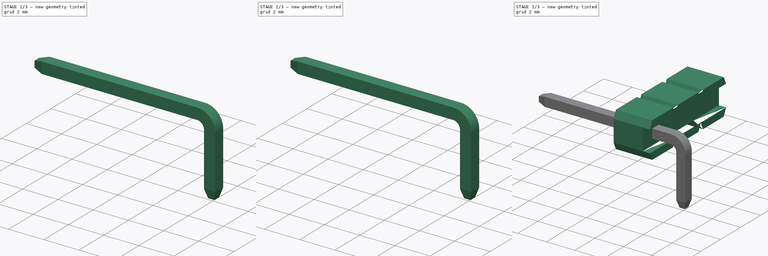
[diagram: build sequence overview — one tinted view per stage of 3, left to right]
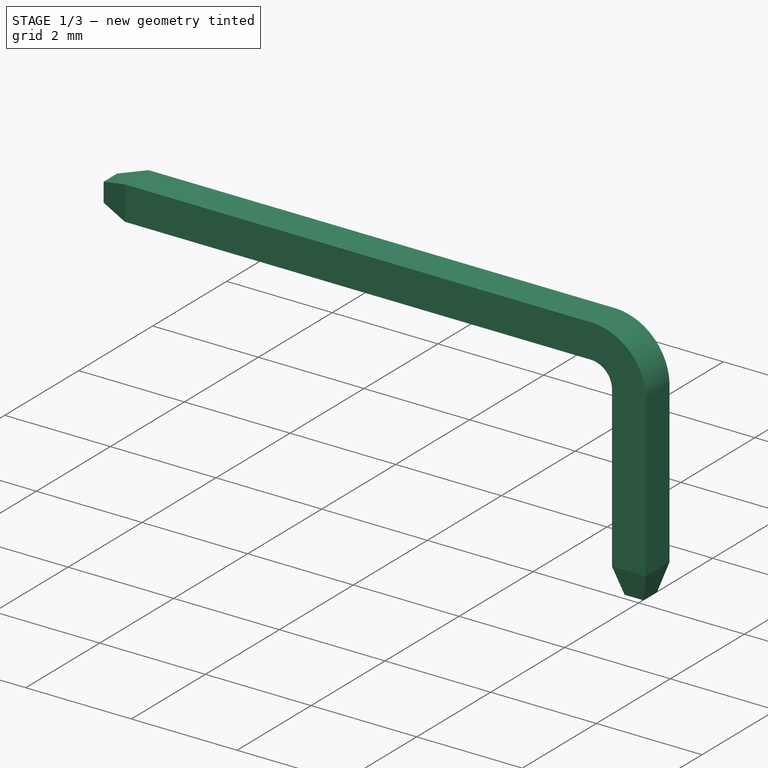
[diagram: stage 1 of 3 — iso view after this stage's code; geometry added in this stage tinted green]
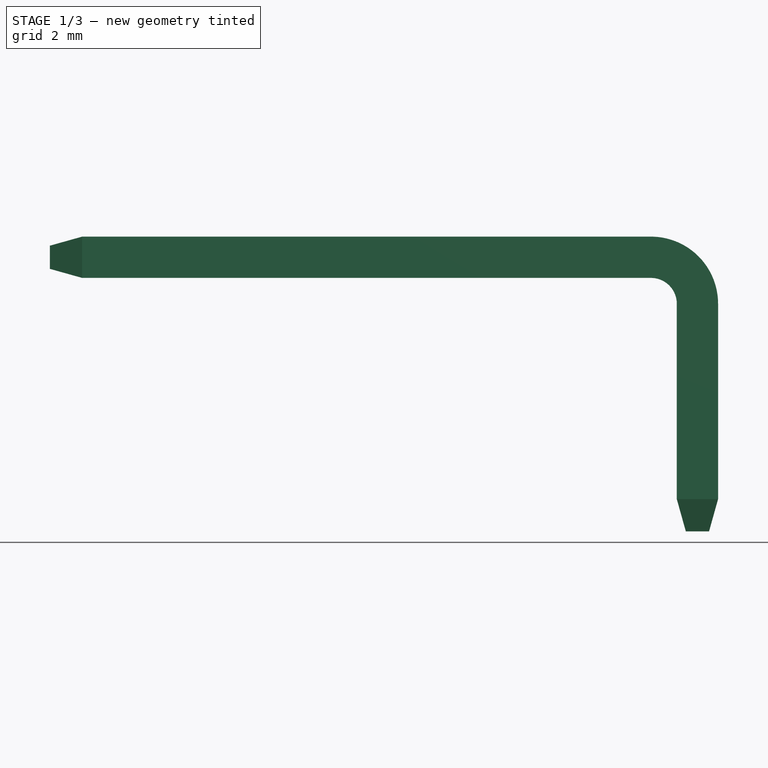
[diagram: stage 1 of 3 — front view after this stage's code; geometry added in this stage tinted green]
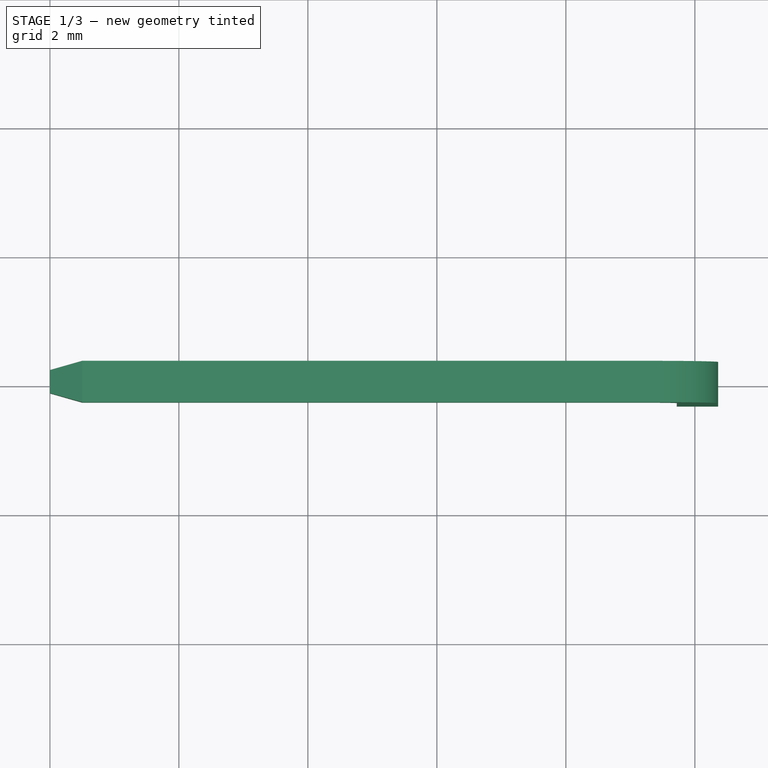
[diagram: stage 1 of 3 — top view after this stage's code; geometry added in this stage tinted green]
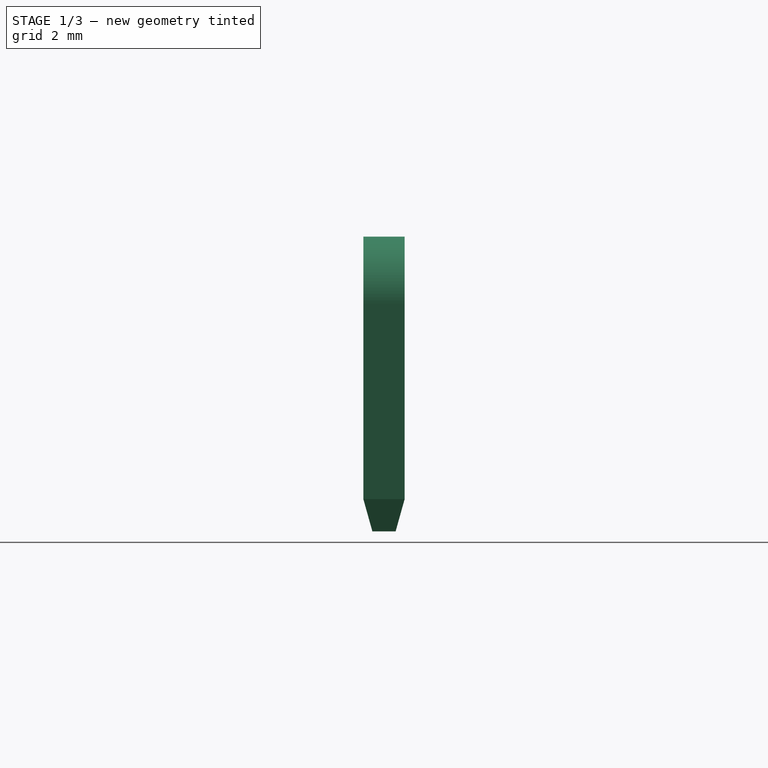
[diagram: stage 1 of 3 — right view after this stage's code; geometry added in this stage tinted green]
FCSTD DOCUMENT  (FreeCAD 0.19R19285 (Git))
Label: 1x3-male-pin-header-right-angle-type-II
License: Creative Commons Attribution-ShareAlike
LicenseURL: http://creativecommons.org/licenses/by-sa/4.0/
objects: Sketcher::SketchObject×9, PartDesign::Body×4, PartDesign::AdditiveLoft×2, PartDesign::FeatureBase×2, PartDesign::Pad×1, PartDesign::LinearPattern×1, PartDesign::Pocket×1, PartDesign::AdditivePipe×1, App::Part×1
note: 26 computed .brp shape members not serialized (recipe doc carries the construction recipe); baked Part::Feature solids carry a one-line shape summary decoded from their .brp

FEATURE [PartDesign::Body] Body  label="1x3-Insulator"
  Group = -> [Sketch,Sketch003,Pad,LinearPattern,Sketch004,Pocket]
  Origin = -> Origin
  Tip = -> Pocket
FEATURE [Sketcher::SketchObject] Sketch007  label="path-sk"
  MapMode = 5
  Placement = pos=(0,0,0) rot=(1,0,0;1.5708rad)
  Support = -> [XZ_Plane001]
  sketch-geometry (6):
    g0: LineSegment StartX=-5.5 StartY=0 StartZ=0 EndX=0 EndY=0 EndZ=0
    g1: LineSegment StartX=0 StartY=0 StartZ=0 EndX=3.32 EndY=0 EndZ=0
    g2: LineSegment StartX=4.04 StartY=-0.72 StartZ=0 EndX=4.04 EndY=-3.75 EndZ=0
    g3: LineSegment [constr] StartX=3.32 StartY=0 StartZ=0 EndX=3.32 EndY=-0.72 EndZ=0
    g4: LineSegment [constr] StartX=4.04 StartY=-0.72 StartZ=0 EndX=3.32 EndY=-0.72 EndZ=0
    g5: ArcOfCircle CenterX=3.32 CenterY=-0.72 CenterZ=0 NormalX=0 NormalY=0 NormalZ=1 AngleXU=0 Radius=0.72 StartAngle=0 EndAngle=1.5708
  constraints (18):
    c: PointOnObject(g0,g-1)
    c: Coincident(g0,g-1)
    c: Coincident(g1,g0)
    c: Horizontal(g1)
    c: Vertical(g2)
    c: Coincident(g3,g1)
    c: Coincident(g4,g2)
    c: Coincident(g4,g3)
    c: Vertical(g3)
    c: Horizontal(g4)
    c: Coincident(g5,g3)
    c: Coincident(g5,g1)
    c: Coincident(g2,g5)
    c: DistanceX(g0,g0) = 5.5
    c: DistanceX(g1,g1) = 3.32
    c: Equal(g3,g4)
    c: DistanceY(g3,g3) = 0.72
    c: DistanceY(g2,g2) = 3.03
FEATURE [Sketcher::SketchObject] Sketch008  label="profile-sk"
  MapMode = 5
  Placement = pos=(0,0,0) rot=(0.57735,0.57735,0.57735;2.0944rad)
  Support = -> [YZ_Plane001]
  sketch-geometry (4):
    g0: LineSegment StartX=-0.32 StartY=0.32 StartZ=0 EndX=0.32 EndY=0.32 EndZ=0
    g1: LineSegment StartX=0.32 StartY=0.32 StartZ=0 EndX=0.32 EndY=-0.32 EndZ=0
    g2: LineSegment StartX=0.32 StartY=-0.32 StartZ=0 EndX=-0.32 EndY=-0.32 EndZ=0
    g3: LineSegment StartX=-0.32 StartY=-0.32 StartZ=0 EndX=-0.32 EndY=0.32 EndZ=0
  constraints (11):
    c: Coincident(g0,g1)
    c: Coincident(g1,g2)
    c: Coincident(g2,g3)
    c: Coincident(g3,g0)
    c: Horizontal(g0)
    c: Horizontal(g2)
    c: Vertical(g1)
    c: Vertical(g3)
    c: Symmetric(g0,g1,g-1)
    c: Equal(g0,g3)
    c: DistanceX(g0,g0) = 0.64
FEATURE [PartDesign::AdditivePipe] AdditivePipe  label="pin-base"
  AuxilleryCurvelinear = true
  AuxillerySpineTangent = false
  Binormal = (0,0,0)
  Mode = 0
  Placement = pos=(0,0,0) rot=(0.57735,0.57735,0.57735;2.0944rad)
  Profile = -> Sketch008
  Refine = true
  Spine = -> Sketch007
  SpineTangent = false
  Transformation = 0
  Transition = 0
FEATURE [Sketcher::SketchObject] Sketch009  label="small-base-sk"
  AttachmentOffset = pos=(0,0,-6) rot=(0,0,1;0rad)
  MapMode = 5
  Placement = pos=(-6,1.3e-15,-1.3e-15) rot=(0.57735,0.57735,0.57735;2.0944rad)
  Support = -> [YZ_Plane]
  sketch-geometry (4):
    g0: LineSegment StartX=-0.18 StartY=0.18 StartZ=0 EndX=0.18 EndY=0.18 EndZ=0
    g1: LineSegment StartX=0.18 StartY=0.18 StartZ=0 EndX=0.18 EndY=-0.18 EndZ=0
    g2: LineSegment StartX=0.18 StartY=-0.18 StartZ=0 EndX=-0.18 EndY=-0.18 EndZ=0
    g3: LineSegment StartX=-0.18 StartY=-0.18 StartZ=0 EndX=-0.18 EndY=0.18 EndZ=0
  constraints (11):
    c: Coincident(g0,g1)
    c: Coincident(g1,g2)
    c: Coincident(g2,g3)
    c: Coincident(g3,g0)
    c: Horizontal(g0)
    c: Horizontal(g2)
    c: Vertical(g1)
    c: Vertical(g3)
    c: Symmetric(g0,g1,g-1)
    c: DistanceX(g0,g0) = 0.36
    c: Equal(g0,g1)
FEATURE [Sketcher::SketchObject] Sketch010  label="big-base-sk"
  AttachmentOffset = pos=(0,0,-5.5) rot=(0,0,1;0rad)
  ExternalGeometry = -> [AdditivePipe,Sketch008]
  MapMode = 5
  Placement = pos=(-5.5,1.2e-15,-1.2e-15) rot=(0.57735,0.57735,0.57735;2.0944rad)
  Support = -> [YZ_Plane]
  sketch-geometry (4):
    g0: LineSegment StartX=-0.32 StartY=0.32 StartZ=0 EndX=0.32 EndY=0.32 EndZ=0
    g1: LineSegment StartX=0.32 StartY=0.32 StartZ=0 EndX=0.32 EndY=-0.32 EndZ=0
    g2: LineSegment StartX=0.32 StartY=-0.32 StartZ=0 EndX=-0.32 EndY=-0.32 EndZ=0
    g3: LineSegment StartX=-0.32 StartY=-0.32 StartZ=0 EndX=-0.32 EndY=0.32 EndZ=0
  constraints (10):
    c: Coincident(g0,g1)
    c: Coincident(g1,g2)
    c: Coincident(g2,g3)
    c: Coincident(g3,g0)
    c: Horizontal(g0)
    c: Horizontal(g2)
    c: Vertical(g1)
    c: Vertical(g3)
    c: Coincident(g-3,g0)
    c: Coincident(g1,g-4)
FEATURE [PartDesign::AdditiveLoft] AdditiveLoft  label="pin-end1"
  BaseFeature = -> AdditivePipe
  Closed = false
  Placement = pos=(0,0,0) rot=(0.57735,0.57735,0.57735;2.0944rad)
  Profile = -> Sketch010
  Refine = true
  Ruled = false
  Sections = -> [Sketch009]
FEATURE [Sketcher::SketchObject] Sketch011  label="big-base2-sk"
  AttachmentOffset = pos=(0,0,-3.75) rot=(0,0,1;0rad)
  ExternalGeometry = -> [AdditiveLoft]
  MapMode = 5
  Placement = pos=(0,0,-3.75) rot=(0,0,1;0rad)
  Support = -> [XY_Plane001]
  sketch-geometry (4):
    g0: LineSegment StartX=3.72 StartY=0.32 StartZ=0 EndX=4.36 EndY=0.32 EndZ=0
    g1: LineSegment StartX=4.36 StartY=0.32 StartZ=0 EndX=4.36 EndY=-0.32 EndZ=0
    g2: LineSegment StartX=4.36 StartY=-0.32 StartZ=0 EndX=3.72 EndY=-0.32 EndZ=0
    g3: LineSegment StartX=3.72 StartY=-0.32 StartZ=0 EndX=3.72 EndY=0.32 EndZ=0
  constraints (10):
    c: Coincident(g0,g1)
    c: Coincident(g1,g2)
    c: Coincident(g2,g3)
    c: Coincident(g3,g0)
    c: Horizontal(g0)
    c: Horizontal(g2)
    c: Vertical(g1)
    c: Vertical(g3)
    c: Coincident(g0,g-3)
    c: Coincident(g1,g-4)
FEATURE [Sketcher::SketchObject] Sketch012  label="small-base2-sk"
  AttachmentOffset = pos=(0,0,-4.25) rot=(0,0,1;0rad)
  ExternalGeometry = -> [Sketch011]
  MapMode = 5
  Placement = pos=(0,0,-4.25) rot=(0,0,1;0rad)
  Support = -> [XY_Plane001]
  sketch-geometry (6):
    g0: LineSegment StartX=3.86 StartY=0.18 StartZ=0 EndX=4.22 EndY=0.18 EndZ=0
    g1: LineSegment StartX=4.22 StartY=0.18 StartZ=0 EndX=4.22 EndY=-0.18 EndZ=0
    g2: LineSegment StartX=4.22 StartY=-0.18 StartZ=0 EndX=3.86 EndY=-0.18 EndZ=0
    g3: LineSegment StartX=3.86 StartY=-0.18 StartZ=0 EndX=3.86 EndY=0.18 EndZ=0
    g4: LineSegment [constr] StartX=4.04 StartY=0.32 StartZ=0 EndX=4.04 EndY=-0.32 EndZ=0
    g5: GeomPoint X=4.04 Y=0 Z=0
  constraints (16):
    c: Coincident(g0,g1)
    c: Coincident(g1,g2)
    c: Coincident(g2,g3)
    c: Coincident(g3,g0)
    c: Horizontal(g0)
    c: Horizontal(g2)
    c: Vertical(g1)
    c: Vertical(g3)
    c: PointOnObject(g4,g-3)
    c: PointOnObject(g4,g-5)
    c: Symmetric(g-4,g-3,g4)
    c: PointOnObject(g5,g4)
    c: PointOnObject(g5,g-1)
    c: Symmetric(g0,g1,g5)
    c: Equal(g0,g1)
    c: DistanceX(g0,g0) = 0.36
FEATURE [PartDesign::AdditiveLoft] AdditiveLoft001
  BaseFeature = -> AdditiveLoft
  Closed = false
  Placement = pos=(0,0,0) rot=(0.57735,0.57735,0.57735;2.0944rad)
  Profile = -> Sketch011
  Refine = true
  Ruled = false
  Sections = -> [Sketch012]
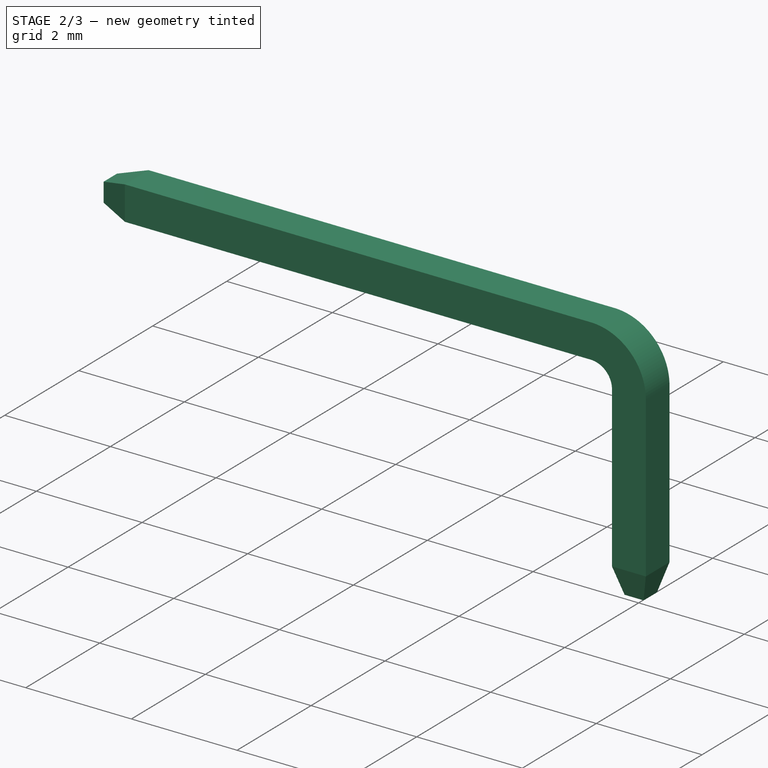
[diagram: stage 2 of 3 — iso view after this stage's code; geometry added in this stage tinted green]
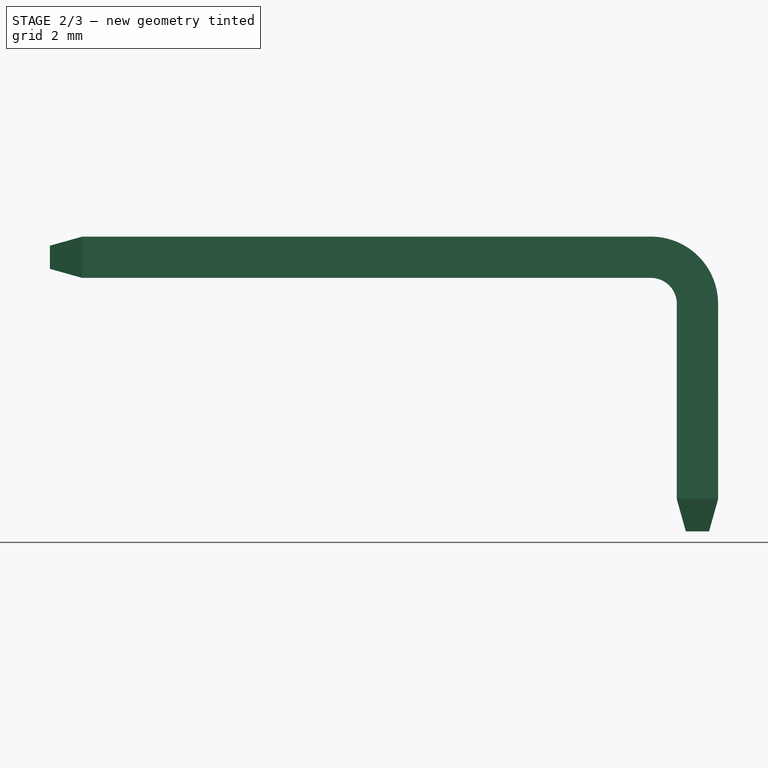
[diagram: stage 2 of 3 — front view after this stage's code; geometry added in this stage tinted green]
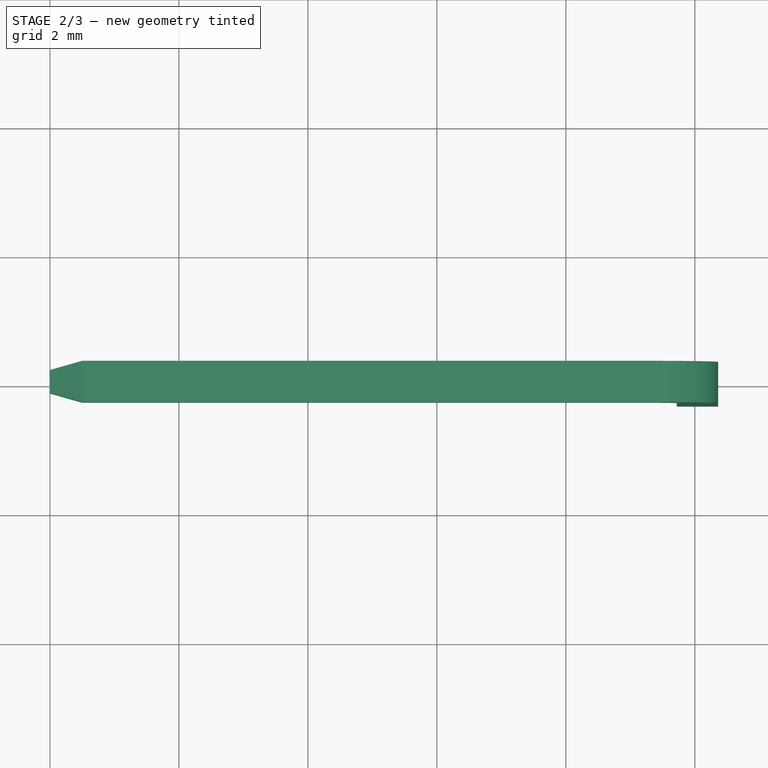
[diagram: stage 2 of 3 — top view after this stage's code; geometry added in this stage tinted green]
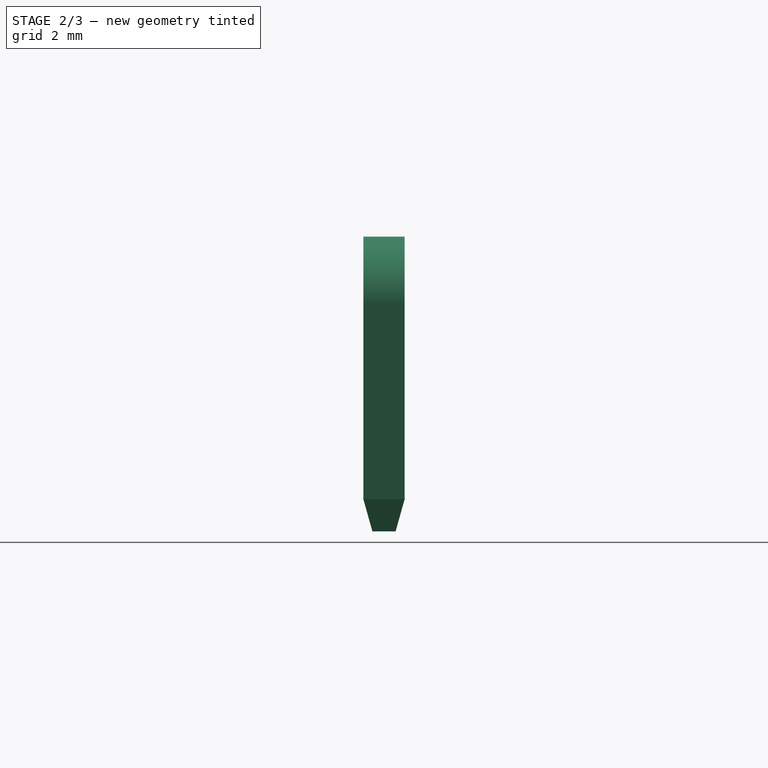
[diagram: stage 2 of 3 — right view after this stage's code; geometry added in this stage tinted green]
FEATURE [PartDesign::Body] Body001  label="pin"
  Group = -> [Sketch007,Sketch008,AdditivePipe,Sketch009,Sketch010,AdditiveLoft,Sketch011,Sketch012,AdditiveLoft001]
  Origin = -> Origin001
  Tip = -> AdditiveLoft001
FEATURE [PartDesign::FeatureBase] Clone
  BaseFeature = -> Body001
FEATURE [PartDesign::Body] Body002  label="pin2"
  Group = -> [Clone]
  Origin = -> Origin002
  Placement = pos=(0,2.54,0) rot=(0,0,1;0rad)
  Tip = -> Clone
FEATURE [PartDesign::FeatureBase] Clone001
  BaseFeature = -> Body001
FEATURE [PartDesign::Body] Body003  label="pin3"
  Group = -> [Clone001]
  Origin = -> Origin003
  Placement = pos=(0,5.08,0) rot=(0,0,1;0rad)
  Tip = -> Clone001
  expr: .Placement.Base.y = 2.54 * 2
FEATURE [App::Part] Part  label="1x3-mape-pin-header-right-angle"
  Group = -> [Body,Body001,Body002,Body003]
  Origin = -> Origin004
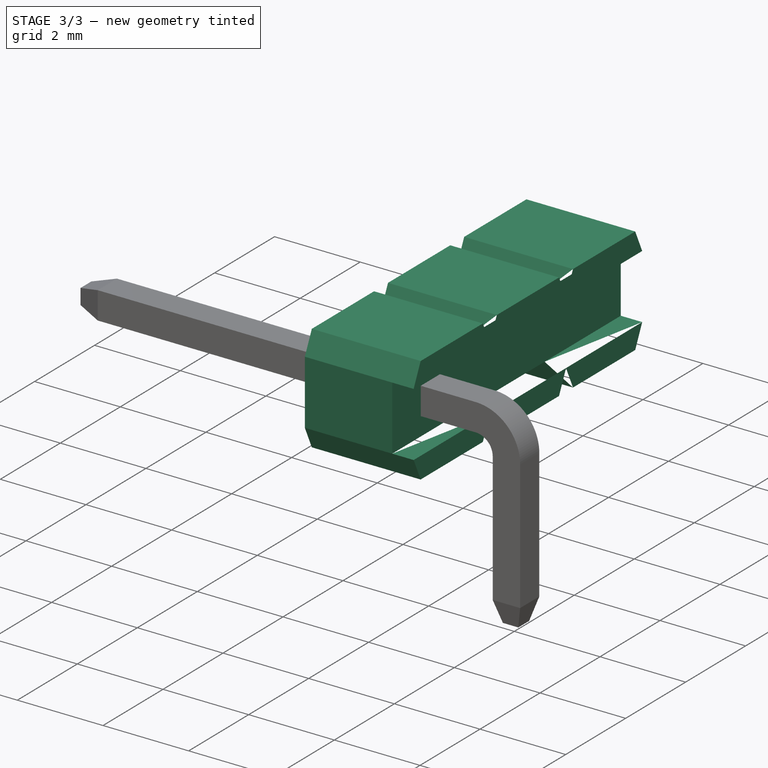
[diagram: stage 3 of 3 — iso view after this stage's code; geometry added in this stage tinted green]
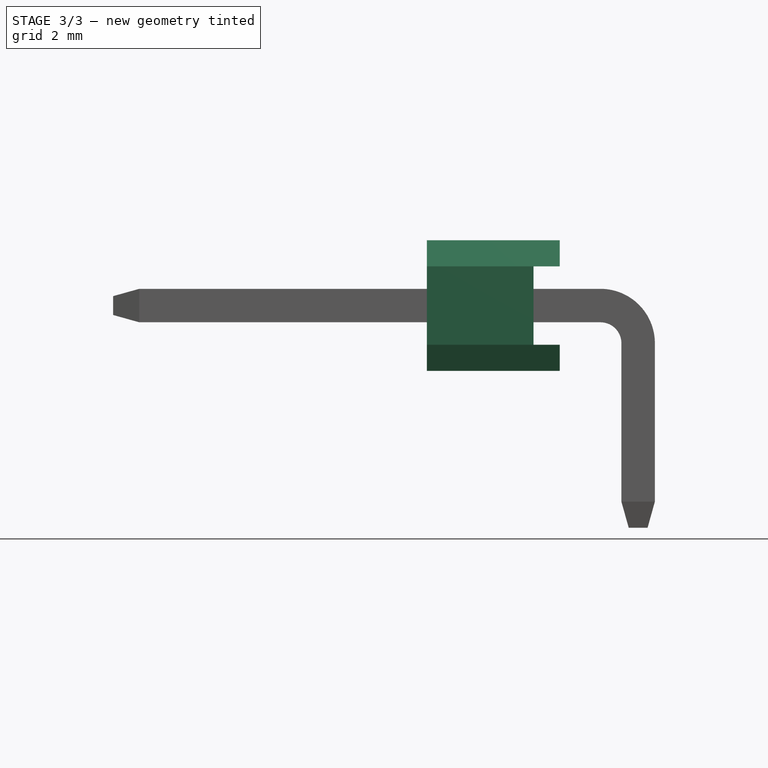
[diagram: stage 3 of 3 — front view after this stage's code; geometry added in this stage tinted green]
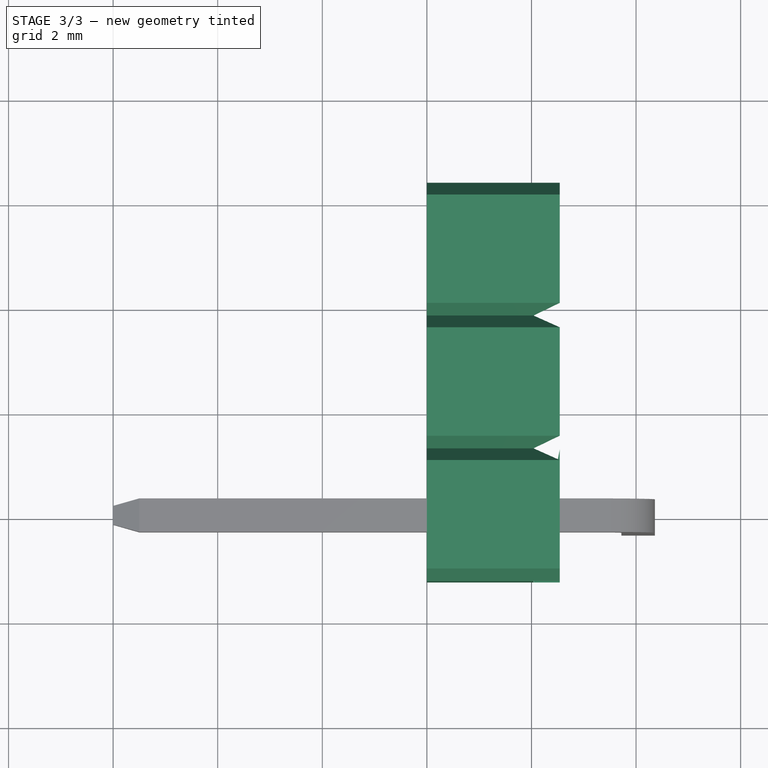
[diagram: stage 3 of 3 — top view after this stage's code; geometry added in this stage tinted green]
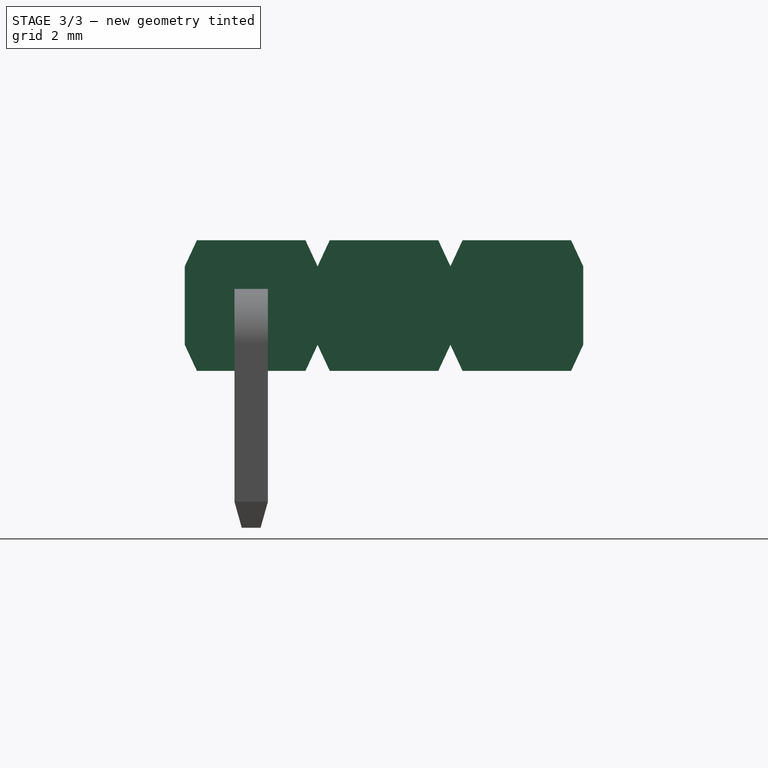
[diagram: stage 3 of 3 — right view after this stage's code; geometry added in this stage tinted green]
FEATURE [Sketcher::SketchObject] Sketch  label="Insulator-1-sk"
  MapMode = 5
  Placement = pos=(0,0,0) rot=(0.57735,0.57735,0.57735;2.0944rad)
  Support = -> [YZ_Plane]
  sketch-geometry (8):
    g0: LineSegment StartX=-1.27 StartY=0.75 StartZ=0 EndX=-1.27 EndY=-0.75 EndZ=0
    g1: LineSegment StartX=-1.27 StartY=0.75 StartZ=0 EndX=-1.0375 EndY=1.25 EndZ=0
    g2: LineSegment StartX=-1.27 StartY=-0.75 StartZ=0 EndX=-1.0375 EndY=-1.25 EndZ=0
    g3: LineSegment StartX=-1.0375 StartY=1.25 StartZ=0 EndX=1.0375 EndY=1.25 EndZ=0
    g4: LineSegment StartX=1.0375 StartY=1.25 StartZ=0 EndX=1.27 EndY=0.75 EndZ=0
    g5: LineSegment StartX=1.27 StartY=0.75 StartZ=0 EndX=1.27 EndY=-0.75 EndZ=0
    g6: LineSegment StartX=1.27 StartY=-0.75 StartZ=0 EndX=1.0375 EndY=-1.25 EndZ=0
    g7: LineSegment StartX=1.0375 StartY=-1.25 StartZ=0 EndX=-1.0375 EndY=-1.25 EndZ=0
  constraints (18):
    c: Symmetric(g0,g0,g-1)
    c: Coincident(g1,g0)
    c: Symmetric(g2,g1,g-1)
    c: Coincident(g0,g2)
    c: DistanceY(g2,g1) = 2.5
    c: DistanceY(g2,g0) = 0.5
    c: Coincident(g3,g1)
    c: Symmetric(g1,g3,g-2)
    c: DistanceX(g3,g3) = 2.075
    c: Coincident(g4,g3)
    c: DistanceX(g0,g4) = 2.54
    c: Symmetric(g4,g0,g-2)
    c: Coincident(g4,g5)
    c: Coincident(g5,g6)
    c: Coincident(g6,g7)
    c: Coincident(g7,g2)
    c: Symmetric(g0,g5,g-2)
    c: Symmetric(g2,g6,g-2)
FEATURE [Sketcher::SketchObject] Sketch003  label="Insulator-sketch-1"
  MapMode = 5
  Placement = pos=(-4.04,-9.56e-13,-0.000281898) rot=(0.57735,0.57735,0.57735;2.0944rad)
  sketch-geometry (11):
    g0: LineSegment StartX=-1.0375 StartY=0 StartZ=0 EndX=1.0375 EndY=0 EndZ=0
    g1: LineSegment [constr] StartX=-1.0375 StartY=0 StartZ=0 EndX=-1.0375 EndY=2.5 EndZ=0
    g2: LineSegment [constr] StartX=-1.0375 StartY=1.25 StartZ=0 EndX=0 EndY=1.25 EndZ=0
    g3: LineSegment [constr] StartX=-1.27 StartY=0.5 StartZ=0 EndX=1.27 EndY=0.5 EndZ=0
    g4: LineSegment StartX=-1.0375 StartY=0 StartZ=0 EndX=-1.27 EndY=0.5 EndZ=0
    g5: LineSegment StartX=-1.27 StartY=0.5 StartZ=0 EndX=-1.27 EndY=2 EndZ=0
    g6: LineSegment StartX=-1.27 StartY=2 StartZ=0 EndX=-1.0375 EndY=2.5 EndZ=0
    g7: LineSegment StartX=-1.0375 StartY=2.5 StartZ=0 EndX=1.0375 EndY=2.5 EndZ=0
    g8: LineSegment StartX=1.0375 StartY=2.5 StartZ=0 EndX=1.27 EndY=2 EndZ=0
    g9: LineSegment StartX=1.27 StartY=2 StartZ=0 EndX=1.27 EndY=0.5 EndZ=0
    g10: LineSegment StartX=1.27 StartY=0.5 StartZ=0 EndX=1.0375 EndY=0 EndZ=0
  constraints (28):
    c: PointOnObject(g0,g-1)
    c: Symmetric(g0,g0,g-2)
    c: DistanceX(g0,g0) = 2.075
    c: Coincident(g1,g0)
    c: Vertical(g1)
    c: DistanceY(g1,g1) = 2.5
    c: PointOnObject(g2,g1)
    c: PointOnObject(g2,g-2)
    c: Symmetric(g1,g0,g2)
    c: Horizontal(g3)
    c: Symmetric(g3,g3,g-2)
    c: DistanceX(g3,g3) = 2.54
    c: Coincident(g0,g4)
    c: Coincident(g4,g3)
    c: Coincident(g4,g5)
    c: Coincident(g5,g6)
    c: Coincident(g6,g1)
    c: Symmetric(g3,g5,g2)
    c: DistanceY(g0,g3) = 0.5
    c: Coincident(g7,g1)
    c: Horizontal(g7)
    c: Coincident(g7,g8)
    c: Coincident(g8,g9)
    c: Coincident(g9,g3)
    c: Coincident(g9,g10)
    c: Coincident(g10,g0)
    c: Symmetric(g1,g7,g-2)
    c: Symmetric(g8,g5,g-2)
FEATURE [PartDesign::Pad] Pad  label="Insulator-1"
  Length = 2.54
  Length2 = 100
  Placement = pos=(0,0,0) rot=(0.57735,0.57735,0.57735;2.0944rad)
  Profile = -> Sketch
  Refine = true
  Type = 0
FEATURE [Sketcher::SketchObject] Sketch004  label="insultator-cutout-sk"
  ExternalGeometry = -> [Sketch]
  MapMode = 5
  Placement = pos=(0,0,0) rot=(1,0,0;1.5708rad)
  Support = -> [XZ_Plane]
  sketch-geometry (5):
    g0: LineSegment StartX=2.04 StartY=0.75 StartZ=0 EndX=2.54 EndY=0.75 EndZ=0
    g1: LineSegment StartX=2.54 StartY=0.75 StartZ=0 EndX=2.54 EndY=-0.75 EndZ=0
    g2: LineSegment StartX=2.54 StartY=-0.75 StartZ=0 EndX=2.04 EndY=-0.75 EndZ=0
    g3: LineSegment StartX=2.04 StartY=-0.75 StartZ=0 EndX=2.04 EndY=0.75 EndZ=0
    g4: LineSegment [constr] StartX=-4e-16 StartY=0.75 StartZ=0 EndX=2.04 EndY=0.75 EndZ=0
  constraints (14):
    c: Coincident(g0,g1)
    c: Coincident(g1,g2)
    c: Coincident(g2,g3)
    c: Coincident(g3,g0)
    c: Horizontal(g0)
    c: Horizontal(g2)
    c: Vertical(g3)
    c: DistanceX(g2,g2) = 0.5
    c: Symmetric(g0,g1,g-1)
    c: DistanceY(g-3,g-3) = 1.5
    c: Horizontal(g4)
    c: Coincident(g4,g-3)
    c: Coincident(g4,g0)
    c: DistanceX(g4,g4) = 2.04
FEATURE [PartDesign::LinearPattern] LinearPattern
  BaseFeature = -> Pad
  Direction = -> Sketch [H_Axis]
  Length = 5.08
  Occurrences = 3
  Originals = -> [Pad]
  Placement = pos=(0,0,0) rot=(0.57735,0.57735,0.57735;2.0944rad)
  Refine = true
  expr: Length = 2.54 * 2
FEATURE [PartDesign::Pocket] Pocket  label="insultator-cutout"
  BaseFeature = -> LinearPattern
  Length = 5
  Length2 = 100
  Midplane = true
  Placement = pos=(0,0,0) rot=(0.57735,0.57735,0.57735;2.0944rad)
  Profile = -> Sketch004
  Refine = true
  Type = 1
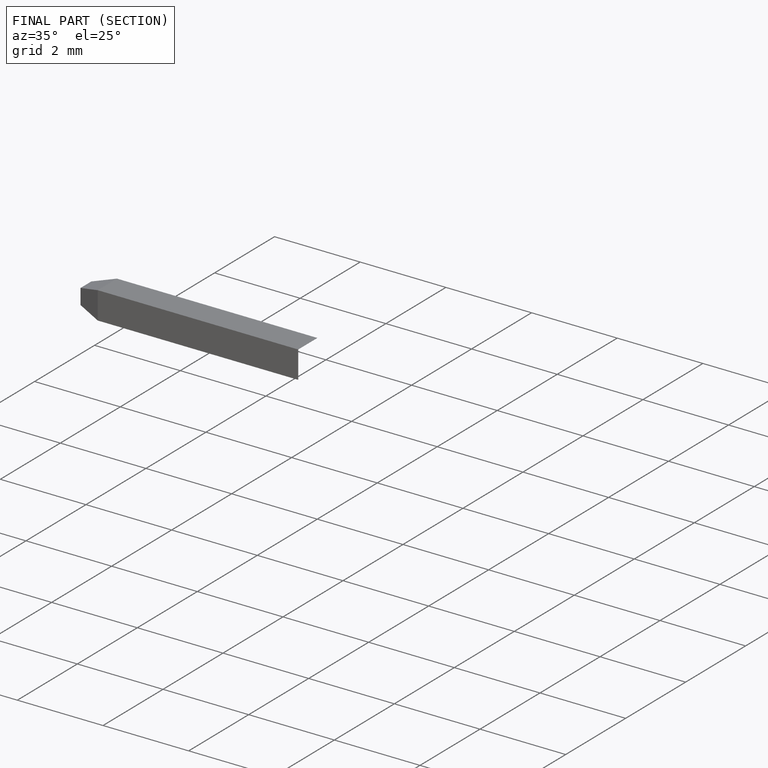
[diagram: finished part — half-section view (interior)]
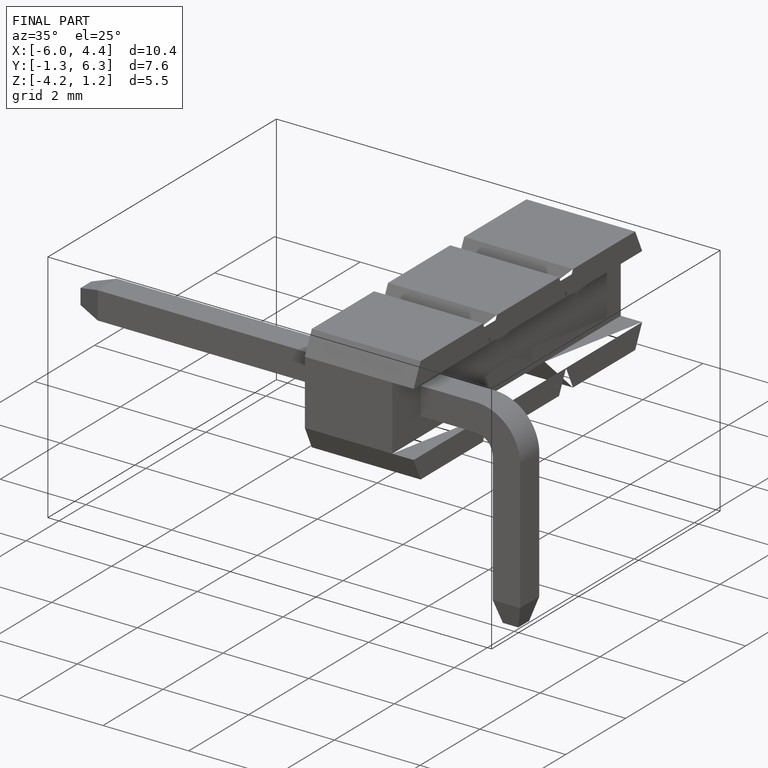
[diagram: finished part — iso view with bounding-box wireframe]
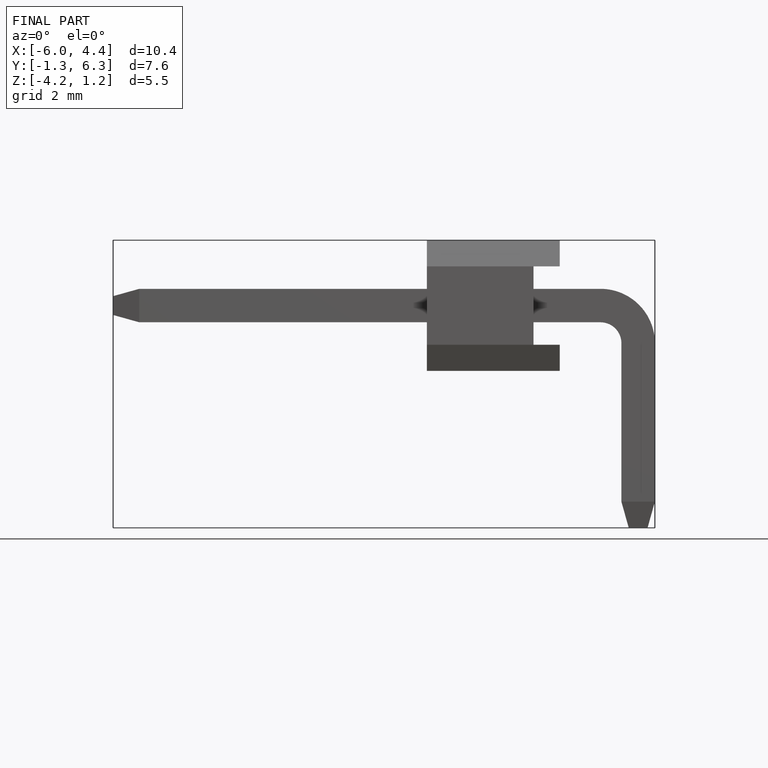
[diagram: finished part — front view with bounding-box wireframe]
